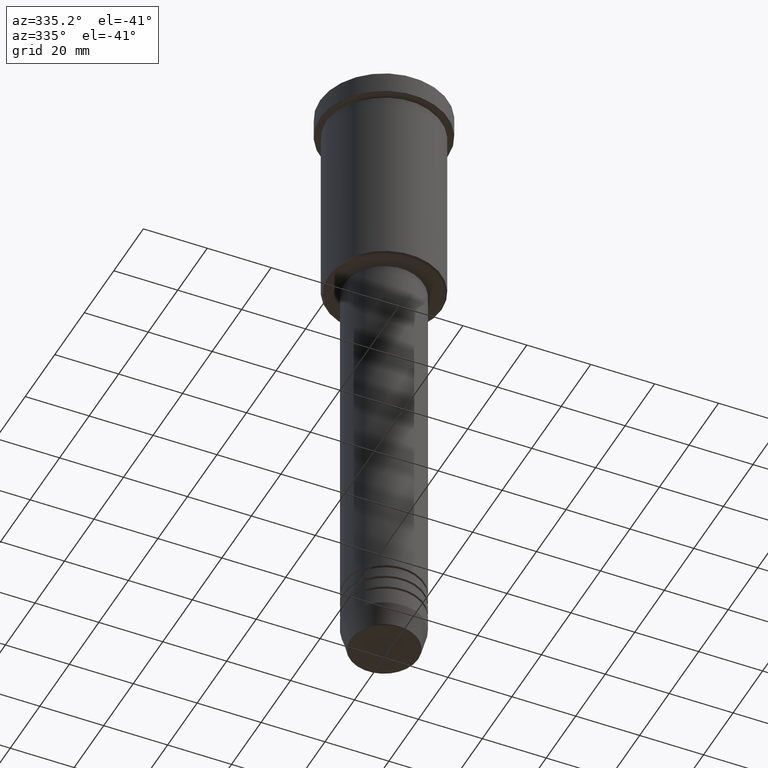
[diagram: clean part render]
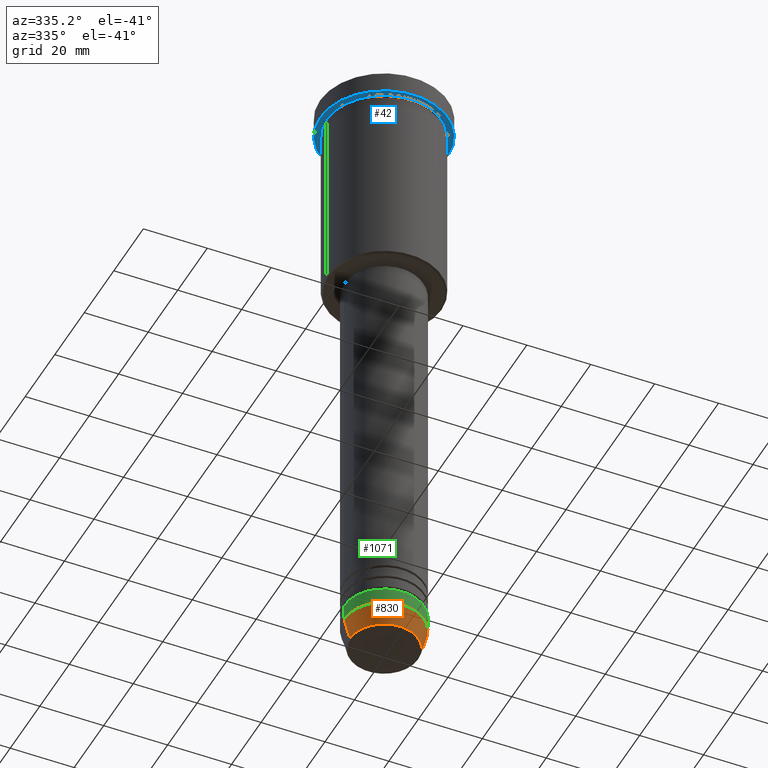
[diagram: same view with three faces highlighted in distinct colors, each labeled with its STEP entity id]
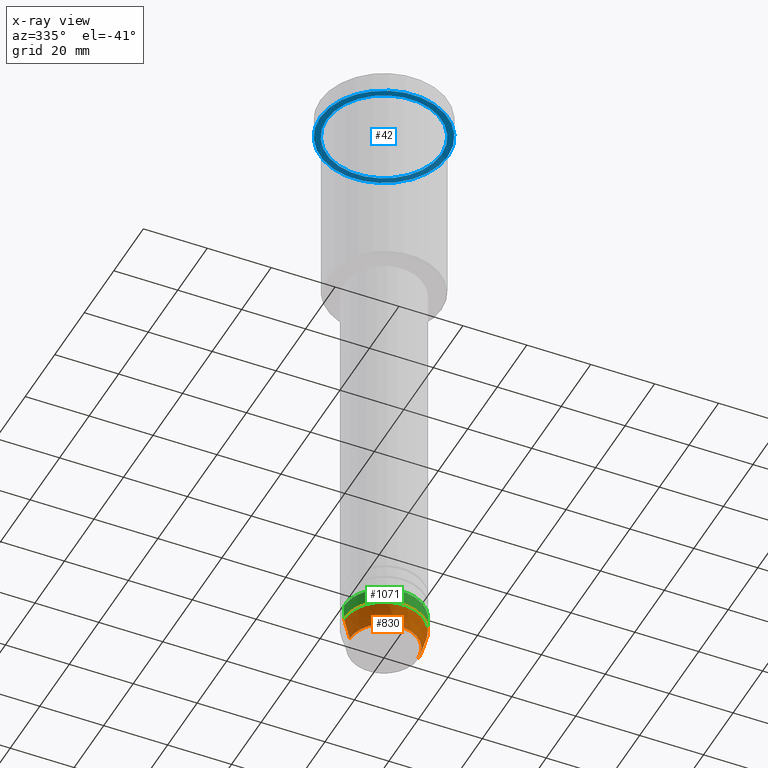
[diagram: x-ray of the same camera — body ghosted, the three highlighted faces saturated]
A machine part, auxiliary view with three faces highlighted in distinct colors.
The next image is the same camera in x-ray (body ghosted, the three faces saturated) — at least one of them is partly hidden behind the body in this view.
Their STEP definitions:

[orange] entity #830 — the highlighted conical surface has half-angle 15 deg.
#14 = DIRECTION ( 'NONE',  ( 1.000000000000000000, 0.000000000000000000, 0.000000000000000000 ) ) ;
#15 = LINE ( 'NONE', #974, #307 ) ;
#48 = CIRCLE ( 'NONE', #1047, 10.72365507213719127 ) ;
#57 = EDGE_CURVE ( 'NONE', #215, #1125, #15, .T. ) ;
#67 = DIRECTION ( 'NONE',  ( 1.000000000000000000, 0.000000000000000000, 0.000000000000000000 ) ) ;
#138 = EDGE_LOOP ( 'NONE', ( #901, #931, #705, #889 ) ) ;
#215 = VERTEX_POINT ( 'NONE', #305 ) ;
#242 = CARTESIAN_POINT ( 'NONE',  ( 0.000000000000000000, 0.000000000000000000, -193.0000000000000284 ) ) ;
#246 = DIRECTION ( 'NONE',  ( -0.000000000000000000, -0.000000000000000000, 1.000000000000000000 ) ) ;
#289 = AXIS2_PLACEMENT_3D ( 'NONE', #242, #246, #616 ) ;
#305 = CARTESIAN_POINT ( 'NONE',  ( -10.72365507213719127, 1.422038742429750516E-15, -199.6294095225512990 ) ) ;
#307 = VECTOR ( 'NONE', #345, 1000.000000000000000 ) ;
#320 = EDGE_CURVE ( 'NONE', #1125, #482, #855, .T. ) ;
#339 = CARTESIAN_POINT ( 'NONE',  ( 0.000000000000000000, 0.000000000000000000, -193.0000000000000284 ) ) ;
#345 = DIRECTION ( 'NONE',  ( -0.2588190451025213501, 3.169619151431772337E-17, 0.9659258262890680902 ) ) ;
#424 = FACE_OUTER_BOUND ( 'NONE', #138, .T. ) ;
#482 = VERTEX_POINT ( 'NONE', #1089 ) ;
#500 = VECTOR ( 'NONE', #920, 1000.000000000000000 ) ;
#569 = EDGE_CURVE ( 'NONE', #215, #922, #48, .T. ) ;
#602 = AXIS2_PLACEMENT_3D ( 'NONE', #339, #985, #67 ) ;
#615 = EDGE_CURVE ( 'NONE', #922, #482, #637, .T. ) ;
#616 = DIRECTION ( 'NONE',  ( 1.000000000000000000, 0.000000000000000000, 0.000000000000000000 ) ) ;
#637 = LINE ( 'NONE', #1006, #500 ) ;
#705 = ORIENTED_EDGE ( 'NONE', *, *, #615, .T. ) ;
#830 = ADVANCED_FACE ( 'NONE', ( #424 ), #1104, .T. ) ;
#840 = CARTESIAN_POINT ( 'NONE',  ( 0.000000000000000000, 0.000000000000000000, -199.6294095225512990 ) ) ;
#855 = CIRCLE ( 'NONE', #602, 12.50000000000000000 ) ;
#889 = ORIENTED_EDGE ( 'NONE', *, *, #320, .F. ) ;
#901 = ORIENTED_EDGE ( 'NONE', *, *, #57, .F. ) ;
#915 = DIRECTION ( 'NONE',  ( -0.000000000000000000, -0.000000000000000000, 1.000000000000000000 ) ) ;
#920 = DIRECTION ( 'NONE',  ( 0.2588190451025213501, 0.000000000000000000, 0.9659258262890680902 ) ) ;
#922 = VERTEX_POINT ( 'NONE', #1010 ) ;
#931 = ORIENTED_EDGE ( 'NONE', *, *, #569, .T. ) ;
#974 = CARTESIAN_POINT ( 'NONE',  ( -12.50000000000000000, 1.530808498934191521E-15, -193.0000000000000284 ) ) ;
#985 = DIRECTION ( 'NONE',  ( -0.000000000000000000, -0.000000000000000000, 1.000000000000000000 ) ) ;
#1006 = CARTESIAN_POINT ( 'NONE',  ( 12.50000000000000000, 0.000000000000000000, -193.0000000000000284 ) ) ;
#1010 = CARTESIAN_POINT ( 'NONE',  ( 10.72365507213719127, 0.000000000000000000, -199.6294095225512990 ) ) ;
#1042 = CARTESIAN_POINT ( 'NONE',  ( -12.50000000000000000, 1.530808498934191521E-15, -193.0000000000000284 ) ) ;
#1047 = AXIS2_PLACEMENT_3D ( 'NONE', #840, #915, #14 ) ;
#1089 = CARTESIAN_POINT ( 'NONE',  ( 12.50000000000000000, 0.000000000000000000, -193.0000000000000284 ) ) ;
#1104 = CONICAL_SURFACE ( 'NONE', #289, 12.50000000000000000, 0.2617993877991500740 ) ;
#1125 = VERTEX_POINT ( 'NONE', #1042 ) ;

[blue] entity #42 — the highlighted planar face has unit normal (0, 0, -1).
#17 = EDGE_CURVE ( 'NONE', #1013, #1012, #195, .T. ) ;
#42 = ADVANCED_FACE ( 'NONE', ( #959, #1070 ), #244, .T. ) ;
#56 = ORIENTED_EDGE ( 'NONE', *, *, #1027, .F. ) ;
#60 = CARTESIAN_POINT ( 'NONE',  ( 0.000000000000000000, 20.00000000000000000, -6.999999999999995559 ) ) ;
#74 = CIRCLE ( 'NONE', #541, 20.00000000000000000 ) ;
#136 = EDGE_CURVE ( 'NONE', #1012, #1013, #269, .T. ) ;
#139 = EDGE_LOOP ( 'NONE', ( #545, #56 ) ) ;
#177 = CARTESIAN_POINT ( 'NONE',  ( -18.00000000000000000, 0.000000000000000000, -6.999999999999995559 ) ) ;
#190 = CARTESIAN_POINT ( 'NONE',  ( 18.00000000000000000, 2.204364238465235428E-15, -6.999999999999995559 ) ) ;
#195 = CIRCLE ( 'NONE', #1155, 18.00000000000000000 ) ;
#225 = ORIENTED_EDGE ( 'NONE', *, *, #136, .T. ) ;
#244 = PLANE ( 'NONE',  #800 ) ;
#258 = DIRECTION ( 'NONE',  ( 1.000000000000000000, 0.000000000000000000, 0.000000000000000000 ) ) ;
#269 = CIRCLE ( 'NONE', #383, 18.00000000000000000 ) ;
#363 = CARTESIAN_POINT ( 'NONE',  ( 20.00000000000000000, 0.000000000000000000, -6.999999999999995559 ) ) ;
#373 = VERTEX_POINT ( 'NONE', #1171 ) ;
#383 = AXIS2_PLACEMENT_3D ( 'NONE', #721, #446, #726 ) ;
#446 = DIRECTION ( 'NONE',  ( -0.000000000000000000, -0.000000000000000000, 1.000000000000000000 ) ) ;
#466 = DIRECTION ( 'NONE',  ( -1.000000000000000000, 0.000000000000000000, -0.000000000000000000 ) ) ;
#506 = ORIENTED_EDGE ( 'NONE', *, *, #17, .T. ) ;
#527 = CIRCLE ( 'NONE', #1088, 20.00000000000000000 ) ;
#541 = AXIS2_PLACEMENT_3D ( 'NONE', #714, #996, #258 ) ;
#545 = ORIENTED_EDGE ( 'NONE', *, *, #1002, .F. ) ;
#597 = VERTEX_POINT ( 'NONE', #363 ) ;
#632 = DIRECTION ( 'NONE',  ( -0.000000000000000000, -0.000000000000000000, 1.000000000000000000 ) ) ;
#642 = CARTESIAN_POINT ( 'NONE',  ( 0.000000000000000000, 0.000000000000000000, -6.999999999999995559 ) ) ;
#644 = CARTESIAN_POINT ( 'NONE',  ( 0.000000000000000000, 0.000000000000000000, -6.999999999999995559 ) ) ;
#646 = DIRECTION ( 'NONE',  ( 1.000000000000000000, 0.000000000000000000, 0.000000000000000000 ) ) ;
#663 = DIRECTION ( 'NONE',  ( -1.000000000000000000, 0.000000000000000000, 0.000000000000000000 ) ) ;
#714 = CARTESIAN_POINT ( 'NONE',  ( 0.000000000000000000, 0.000000000000000000, -6.999999999999995559 ) ) ;
#721 = CARTESIAN_POINT ( 'NONE',  ( 0.000000000000000000, 0.000000000000000000, -6.999999999999995559 ) ) ;
#726 = DIRECTION ( 'NONE',  ( -1.000000000000000000, 0.000000000000000000, 0.000000000000000000 ) ) ;
#766 = DIRECTION ( 'NONE',  ( -0.000000000000000000, -0.000000000000000000, 1.000000000000000000 ) ) ;
#800 = AXIS2_PLACEMENT_3D ( 'NONE', #60, #930, #466 ) ;
#879 = EDGE_LOOP ( 'NONE', ( #225, #506 ) ) ;
#930 = DIRECTION ( 'NONE',  ( 0.000000000000000000, 0.000000000000000000, -1.000000000000000000 ) ) ;
#959 = FACE_BOUND ( 'NONE', #879, .T. ) ;
#996 = DIRECTION ( 'NONE',  ( -0.000000000000000000, -0.000000000000000000, 1.000000000000000000 ) ) ;
#1002 = EDGE_CURVE ( 'NONE', #597, #373, #527, .T. ) ;
#1012 = VERTEX_POINT ( 'NONE', #177 ) ;
#1013 = VERTEX_POINT ( 'NONE', #190 ) ;
#1027 = EDGE_CURVE ( 'NONE', #373, #597, #74, .T. ) ;
#1070 = FACE_OUTER_BOUND ( 'NONE', #139, .T. ) ;
#1088 = AXIS2_PLACEMENT_3D ( 'NONE', #642, #632, #646 ) ;
#1155 = AXIS2_PLACEMENT_3D ( 'NONE', #644, #766, #663 ) ;
#1171 = CARTESIAN_POINT ( 'NONE',  ( -20.00000000000000000, 2.449293598294706513E-15, -6.999999999999995559 ) ) ;

[green] entity #1071 — the highlighted cylindrical surface (partial cylindrical patch) has radius 12.5 mm, axis along (-0, -0, 1).
#10 = AXIS2_PLACEMENT_3D ( 'NONE', #19, #576, #846 ) ;
#19 = CARTESIAN_POINT ( 'NONE',  ( 0.000000000000000000, 0.000000000000000000, 0.000000000000000000 ) ) ;
#25 = EDGE_CURVE ( 'NONE', #1125, #701, #567, .T. ) ;
#40 = VERTEX_POINT ( 'NONE', #107 ) ;
#67 = DIRECTION ( 'NONE',  ( 1.000000000000000000, 0.000000000000000000, 0.000000000000000000 ) ) ;
#100 = CYLINDRICAL_SURFACE ( 'NONE', #10, 12.50000000000000000 ) ;
#107 = CARTESIAN_POINT ( 'NONE',  ( 12.50000000000000000, 0.000000000000000000, -188.0000000000000284 ) ) ;
#198 = VECTOR ( 'NONE', #232, 1000.000000000000000 ) ;
#210 = CARTESIAN_POINT ( 'NONE',  ( 0.000000000000000000, 0.000000000000000000, -188.0000000000000284 ) ) ;
#232 = DIRECTION ( 'NONE',  ( -0.000000000000000000, -0.000000000000000000, 1.000000000000000000 ) ) ;
#280 = EDGE_CURVE ( 'NONE', #701, #40, #1136, .T. ) ;
#317 = ORIENTED_EDGE ( 'NONE', *, *, #320, .T. ) ;
#320 = EDGE_CURVE ( 'NONE', #1125, #482, #855, .T. ) ;
#339 = CARTESIAN_POINT ( 'NONE',  ( 0.000000000000000000, 0.000000000000000000, -193.0000000000000284 ) ) ;
#403 = AXIS2_PLACEMENT_3D ( 'NONE', #210, #470, #757 ) ;
#421 = EDGE_LOOP ( 'NONE', ( #455, #317, #1077, #613 ) ) ;
#455 = ORIENTED_EDGE ( 'NONE', *, *, #25, .F. ) ;
#470 = DIRECTION ( 'NONE',  ( -0.000000000000000000, -0.000000000000000000, 1.000000000000000000 ) ) ;
#482 = VERTEX_POINT ( 'NONE', #1089 ) ;
#567 = LINE ( 'NONE', #668, #870 ) ;
#576 = DIRECTION ( 'NONE',  ( -0.000000000000000000, -0.000000000000000000, 1.000000000000000000 ) ) ;
#585 = CARTESIAN_POINT ( 'NONE',  ( -12.50000000000000000, 1.530808498934191521E-15, -188.0000000000000284 ) ) ;
#602 = AXIS2_PLACEMENT_3D ( 'NONE', #339, #985, #67 ) ;
#613 = ORIENTED_EDGE ( 'NONE', *, *, #280, .F. ) ;
#668 = CARTESIAN_POINT ( 'NONE',  ( -12.50000000000000000, 1.530808498934191521E-15, 0.000000000000000000 ) ) ;
#701 = VERTEX_POINT ( 'NONE', #585 ) ;
#757 = DIRECTION ( 'NONE',  ( 1.000000000000000000, 0.000000000000000000, 0.000000000000000000 ) ) ;
#846 = DIRECTION ( 'NONE',  ( 1.000000000000000000, 0.000000000000000000, 0.000000000000000000 ) ) ;
#855 = CIRCLE ( 'NONE', #602, 12.50000000000000000 ) ;
#860 = EDGE_CURVE ( 'NONE', #482, #40, #1080, .T. ) ;
#862 = FACE_OUTER_BOUND ( 'NONE', #421, .T. ) ;
#870 = VECTOR ( 'NONE', #1127, 1000.000000000000000 ) ;
#984 = CARTESIAN_POINT ( 'NONE',  ( 12.50000000000000000, 0.000000000000000000, 0.000000000000000000 ) ) ;
#985 = DIRECTION ( 'NONE',  ( -0.000000000000000000, -0.000000000000000000, 1.000000000000000000 ) ) ;
#1042 = CARTESIAN_POINT ( 'NONE',  ( -12.50000000000000000, 1.530808498934191521E-15, -193.0000000000000284 ) ) ;
#1071 = ADVANCED_FACE ( 'NONE', ( #862 ), #100, .T. ) ;
#1077 = ORIENTED_EDGE ( 'NONE', *, *, #860, .T. ) ;
#1080 = LINE ( 'NONE', #984, #198 ) ;
#1089 = CARTESIAN_POINT ( 'NONE',  ( 12.50000000000000000, 0.000000000000000000, -193.0000000000000284 ) ) ;
#1125 = VERTEX_POINT ( 'NONE', #1042 ) ;
#1127 = DIRECTION ( 'NONE',  ( -0.000000000000000000, -0.000000000000000000, 1.000000000000000000 ) ) ;
#1136 = CIRCLE ( 'NONE', #403, 12.50000000000000000 ) ;